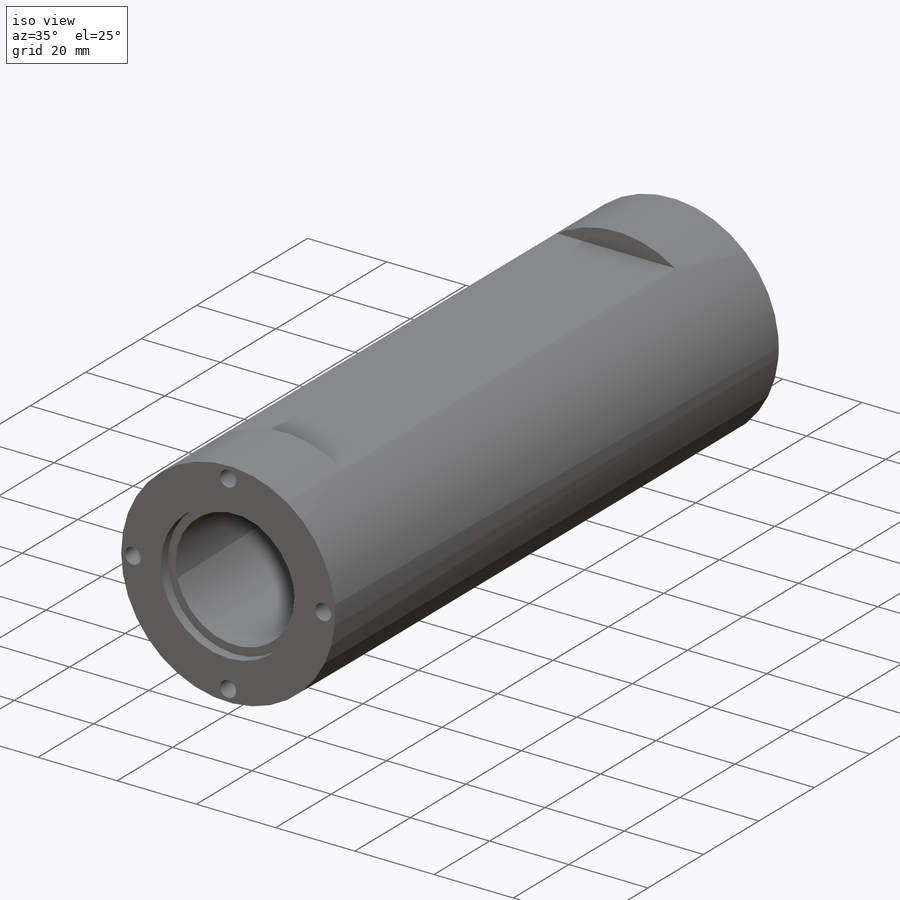
[diagram: iso view]
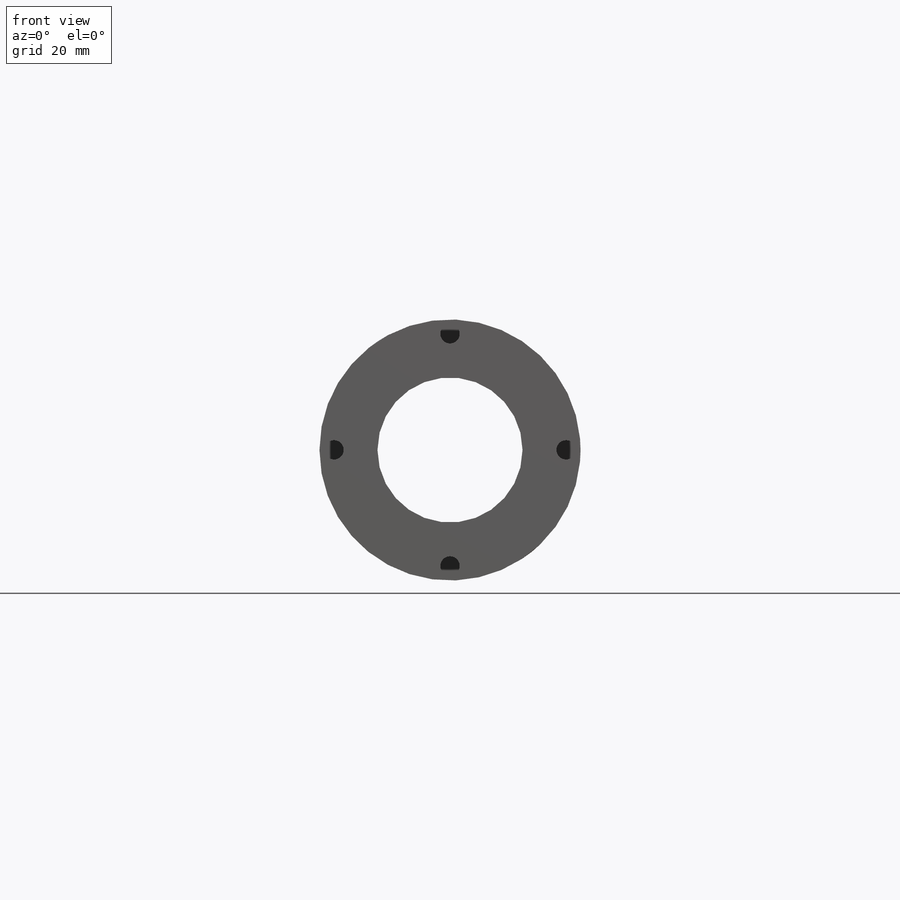
[diagram: front view]
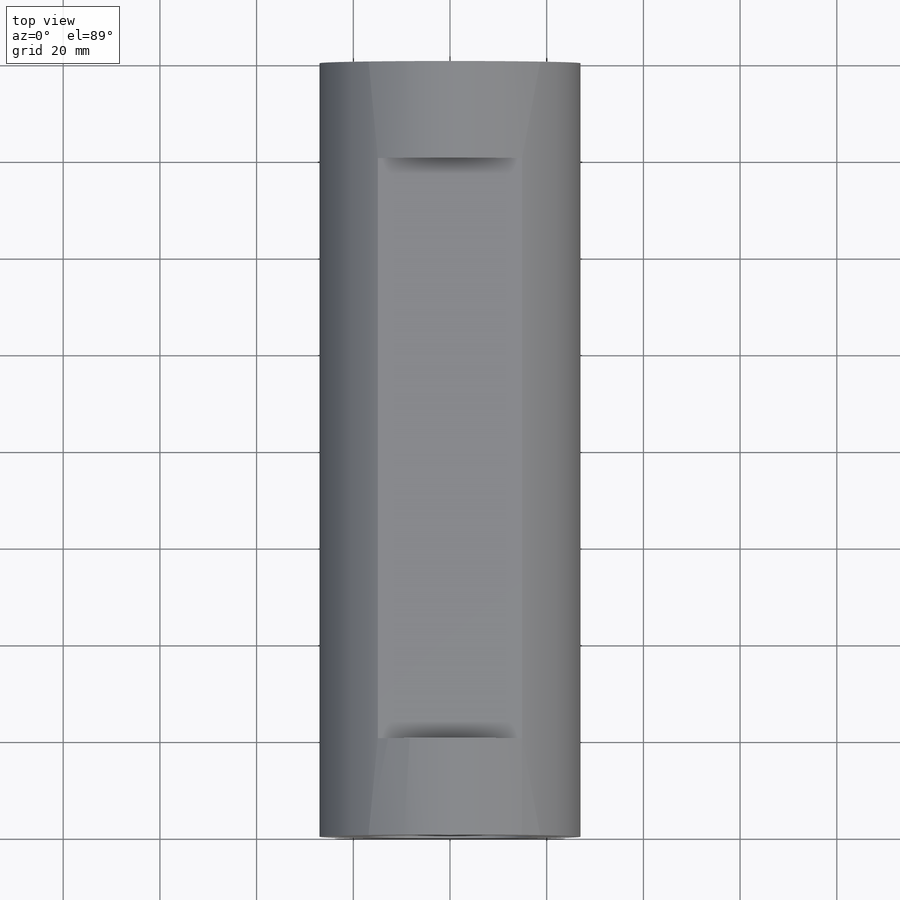
[diagram: top view]
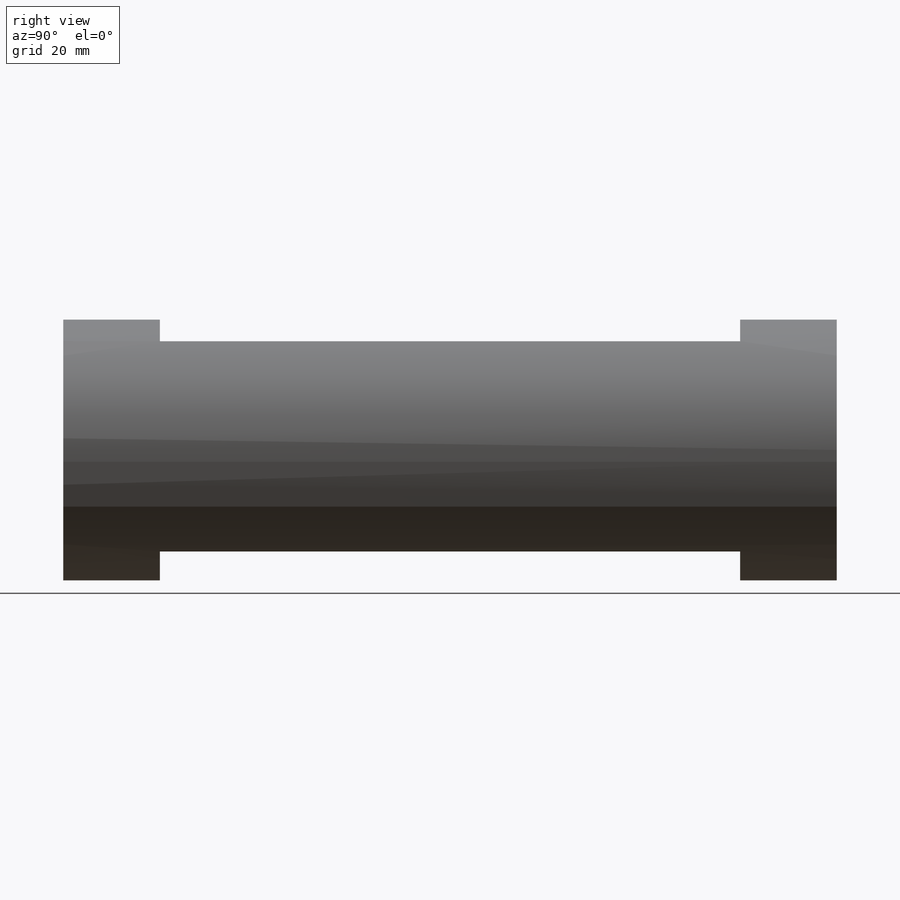
[diagram: right view]
SOLIDWORKS PART (.sldprt)
format: sldprt  version: not decoded by parser v0  size: 184,832 bytes
history: native  units: mm
features: sketch x6, cut_extrude x5, plane x3, material x1, extrude x1 (+11 scaffold rows collapsed)
feature tree (27):
  scaffold x11  (default folders/planes/origin — collapsed)
  material  "Matériau <non spécifié>"
  plane  "Plan de face"
  plane  "Plan de dessus"
  plane  "Plan de droite"
  sketch  "Esquisse1"  dims[D1=25.0mm]
  extrude  "Extrusion1"  Depth=160mm
  sketch  "Esquisse2"  dims[D1=24.0mm]
  cut_extrude  "Extrusion2"  Depth=15mm
  sketch  "Esquisse3"  dims[D1=24.0mm]
  cut_extrude  "Extrusion3"  Depth=15mm
  sketch  "Esquisse4"  dims[D1=~18.989429mm]
  cut_extrude  "Extrusion4"  Depth=2.5mm
  sketch  "Esquisse5"  dims[D1=~12.555596mm]
  cut_extrude  "Extrusion5"  Depth=2.5mm
  sketch  "Esquisse6"  dims[D1=0.5mm]
  cut_extrude  "Extrusion6"  [1 undecoded]
decode coverage: 11 of 12 modeling features carry decoded parameters
note: ~ marks probable driven/reference dimensions
note: 1 parameter value undecoded
note: suppression state not decoded; provenance and decode notes live in map.json
